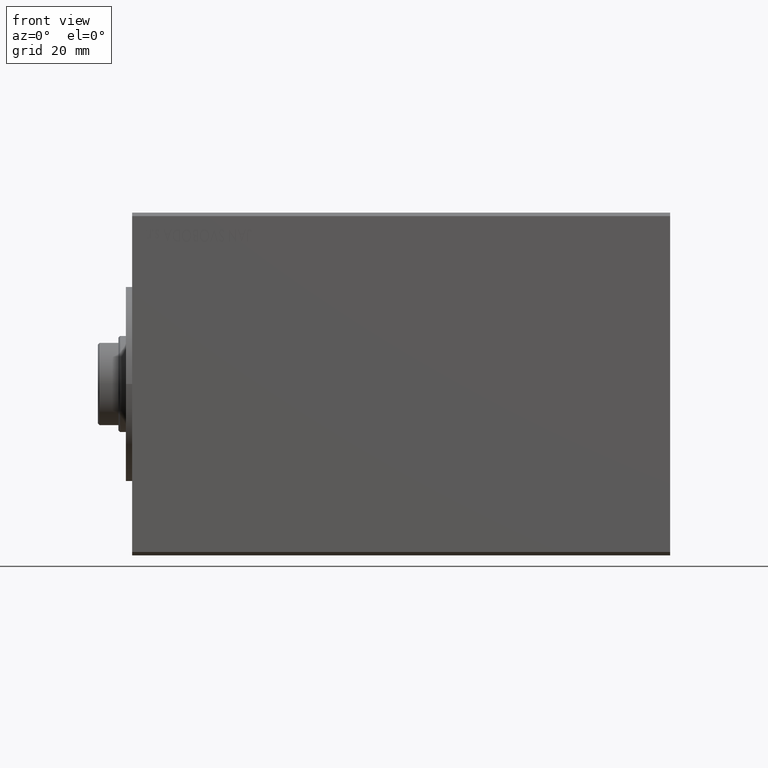
[diagram: clean part render]
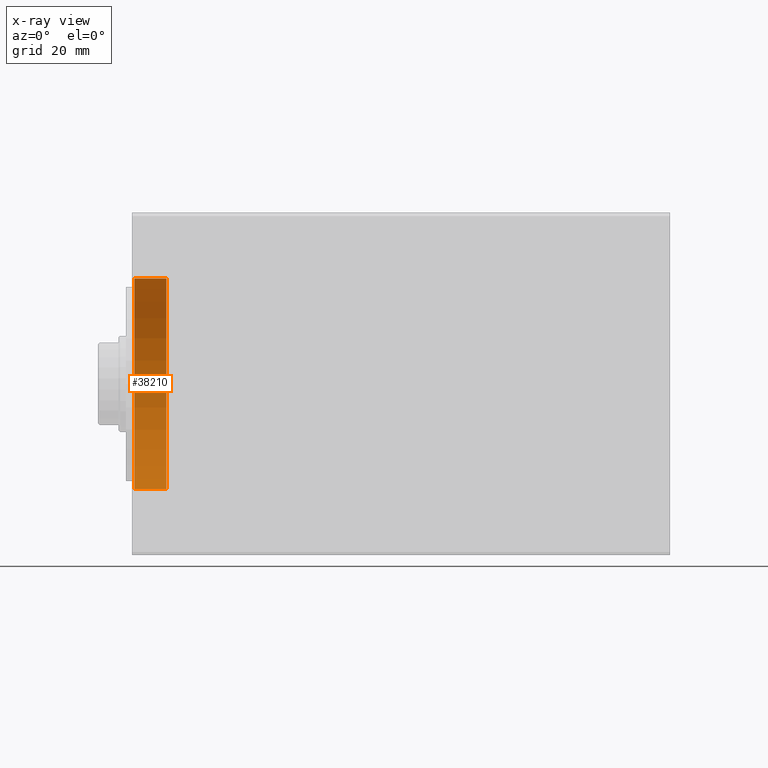
[diagram: x-ray — body ghosted, one internal face saturated and labeled with its STEP entity id]
A machine part, front view, then the same camera in x-ray: the body is ghosted and one INTERNAL B-rep face — a face not visible from any outside direction — is saturated and labeled: STEP entity #38210.
In plain terms, the highlighted cylindrical surface (partial cylindrical patch) has radius 30.75 mm, axis along (-1, -0, -0).
Its self-contained STEP definition (entity closure, byte-faithful):
#3195 = EDGE_CURVE ( 'NONE', #17543, #15853, #41308, .T. ) ;
#4531 = CARTESIAN_POINT ( 'NONE',  ( 0.6999999999999957367, 3.765788907378111328E-15, -30.75000000000000355 ) ) ;
#5208 = DIRECTION ( 'NONE',  ( 0.000000000000000000, 0.000000000000000000, 1.000000000000000000 ) ) ;
#6703 = DIRECTION ( 'NONE',  ( -1.000000000000000000, -0.000000000000000000, -0.000000000000000000 ) ) ;
#10113 = CARTESIAN_POINT ( 'NONE',  ( 10.00000000000000000, 0.000000000000000000, 30.75000000000000355 ) ) ;
#10462 = EDGE_LOOP ( 'NONE', ( #30854, #37374, #24166, #26110 ) ) ;
#10468 = CARTESIAN_POINT ( 'NONE',  ( 10.00000000000000000, 3.765788907378111328E-15, -30.75000000000000355 ) ) ;
#10684 = LINE ( 'NONE', #10468, #15558 ) ;
#11572 = VERTEX_POINT ( 'NONE', #20887 ) ;
#12999 = DIRECTION ( 'NONE',  ( 0.000000000000000000, 0.000000000000000000, 1.000000000000000000 ) ) ;
#13213 = CARTESIAN_POINT ( 'NONE',  ( 10.00000000000000000, 0.000000000000000000, 0.000000000000000000 ) ) ;
#13447 = CYLINDRICAL_SURFACE ( 'NONE', #41591, 30.75000000000000355 ) ;
#15558 = VECTOR ( 'NONE', #24138, 1000.000000000000000 ) ;
#15652 = DIRECTION ( 'NONE',  ( 0.000000000000000000, 0.000000000000000000, -1.000000000000000000 ) ) ;
#15853 = VERTEX_POINT ( 'NONE', #41870 ) ;
#17543 = VERTEX_POINT ( 'NONE', #34483 ) ;
#20887 = CARTESIAN_POINT ( 'NONE',  ( 10.00000000000000000, 3.765788907378111328E-15, -30.75000000000000355 ) ) ;
#21608 = DIRECTION ( 'NONE',  ( -1.000000000000000000, 0.000000000000000000, 0.000000000000000000 ) ) ;
#22310 = VECTOR ( 'NONE', #6703, 1000.000000000000000 ) ;
#24138 = DIRECTION ( 'NONE',  ( -1.000000000000000000, -0.000000000000000000, -0.000000000000000000 ) ) ;
#24166 = ORIENTED_EDGE ( 'NONE', *, *, #3195, .T. ) ;
#26110 = ORIENTED_EDGE ( 'NONE', *, *, #35285, .T. ) ;
#26459 = CIRCLE ( 'NONE', #30085, 30.75000000000000355 ) ;
#26583 = DIRECTION ( 'NONE',  ( -1.000000000000000000, 0.000000000000000000, 0.000000000000000000 ) ) ;
#26907 = FACE_OUTER_BOUND ( 'NONE', #10462, .T. ) ;
#28310 = AXIS2_PLACEMENT_3D ( 'NONE', #33405, #26583, #15652 ) ;
#28869 = VERTEX_POINT ( 'NONE', #4531 ) ;
#30085 = AXIS2_PLACEMENT_3D ( 'NONE', #32088, #21608, #5208 ) ;
#30495 = CIRCLE ( 'NONE', #28310, 30.75000000000000355 ) ;
#30854 = ORIENTED_EDGE ( 'NONE', *, *, #43519, .F. ) ;
#30990 = DIRECTION ( 'NONE',  ( -1.000000000000000000, -0.000000000000000000, -0.000000000000000000 ) ) ;
#32088 = CARTESIAN_POINT ( 'NONE',  ( 10.00000000000000000, 0.000000000000000000, 0.000000000000000000 ) ) ;
#33405 = CARTESIAN_POINT ( 'NONE',  ( 0.6999999999999957367, 0.000000000000000000, 0.000000000000000000 ) ) ;
#34483 = CARTESIAN_POINT ( 'NONE',  ( 10.00000000000000000, 0.000000000000000000, 30.75000000000000355 ) ) ;
#35285 = EDGE_CURVE ( 'NONE', #15853, #28869, #30495, .T. ) ;
#37374 = ORIENTED_EDGE ( 'NONE', *, *, #42704, .F. ) ;
#38210 = ADVANCED_FACE ( 'NONE', ( #26907 ), #13447, .F. ) ;
#41308 = LINE ( 'NONE', #10113, #22310 ) ;
#41591 = AXIS2_PLACEMENT_3D ( 'NONE', #13213, #30990, #12999 ) ;
#41870 = CARTESIAN_POINT ( 'NONE',  ( 0.6999999999999957367, 0.000000000000000000, 30.75000000000000355 ) ) ;
#42704 = EDGE_CURVE ( 'NONE', #17543, #11572, #26459, .T. ) ;
#43519 = EDGE_CURVE ( 'NONE', #11572, #28869, #10684, .T. ) ;